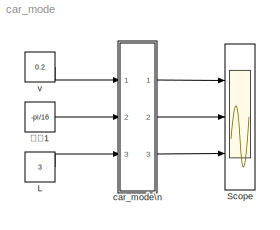
MODEL car_mode
KIND model
BLOCK [Constant]  L
  SID = 26
  Value = 3
BLOCK [Constant]  ¦Ä1
  SID = 33
  Value = -pi/16
BLOCK [Scope] Scope
  Floating = off
  NumInputPorts = 3
  Ports = [3]
  SID = 17
  ScopeSpecificationString = Simulink.scopes.TimeScopeBlockCfg('CurrentConfiguration', extmgr.ConfigurationSet(extmgr.Configuration('Core','General UI',true),extmgr.Configuration('Core','Source UI',true),extmgr.Configuration('Sources','WiredSimulink',true,'DataLoggingVariableName','x','DataLogging',true),extmgr.Configuration('Visuals','Time Domain',true,'SerializedDisplays',{struct('MinYLimReal','-3.76639','MaxYLimReal','33.8...<+2714ch>
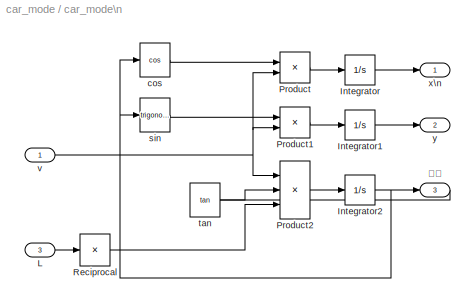
BLOCK [SubSystem] car_mode\n
  Ports = [3, 3]
  RequestExecContextInheritance = off
  SID = 18
BLOCK [Integrator] car_mode\n/Integrator
  Ports = [1, 1]
  SID = 1
BLOCK [Integrator] car_mode\n/Integrator1
  Ports = [1, 1]
  SID = 10
BLOCK [Integrator] car_mode\n/Integrator2
  InitialCondition = pi/2
  Ports = [1, 1]
  SID = 15
BLOCK [Inport] car_mode\n/L
  IconDisplay = Port number
  Port = 3
  SID = 24
BLOCK [Product] car_mode\n/Product
  InputSameDT = off
  OutDataTypeStr = Inherit: Inherit via internal rule
  Ports = [2, 1]
  RndMeth = Floor
  SID = 3
  SaturateOnIntegerOverflow = off
BLOCK [Product] car_mode\n/Product1
  InputSameDT = off
  OutDataTypeStr = Inherit: Inherit via internal rule
  Ports = [2, 1]
  RndMeth = Floor
  SID = 9
  SaturateOnIntegerOverflow = off
BLOCK [Product] car_mode\n/Product2
  InputSameDT = off
  Inputs = 3
  OutDataTypeStr = Inherit: Inherit via internal rule
  Ports = [3, 1]
  RndMeth = Floor
  SID = 13
  SaturateOnIntegerOverflow = off
BLOCK [Product] car_mode\n/Reciprocal
  InputSameDT = off
  Inputs = /
  OutDataTypeStr = Inherit: Inherit via internal rule
  Ports = [1, 1]
  RndMeth = Floor
  SID = 25
  SaturateOnIntegerOverflow = off
BLOCK [Trigonometry] car_mode\n/cos
  Operator = cos
  Ports = [1, 1]
  SID = 5
BLOCK [Trigonometry] car_mode\n/sin
  Ports = [1, 1]
  SID = 8
BLOCK [Trigonometry] car_mode\n/tan
  Operator = tan
  Ports = [1, 1]
  SID = 11
BLOCK [Inport] car_mode\n/v
  IconDisplay = Port number
  SID = 19
BLOCK [Outport] car_mode\n/x\n
  IconDisplay = Port number
  SID = 21
BLOCK [Outport] car_mode\n/y
  IconDisplay = Port number
  Port = 2
  SID = 22
BLOCK [Inport] car_mode\n/¦Ä
  IconDisplay = Port number
  Port = 2
  SID = 20
BLOCK [Outport] car_mode\n/¦Õ
  IconDisplay = Port number
  Port = 3
  SID = 23
BLOCK [Constant] v
  SID = 2
  Value = 0.2
LINE  L:1 -> car_mode\n:3
LINE  ¦Ä1:1 -> car_mode\n:2
LINE car_mode\n/Integrator1:1 -> car_mode\n/y:1
NET car_mode\n/Integrator2:1 -> car_mode\n/cos:1, car_mode\n/sin:1, car_mode\n/¦Õ:1
LINE car_mode\n/Integrator:1 -> car_mode\n/x\n:1
LINE car_mode\n/L:1 -> car_mode\n/Reciprocal:1
LINE car_mode\n/Product1:1 -> car_mode\n/Integrator1:1
LINE car_mode\n/Product2:1 -> car_mode\n/Integrator2:1
LINE car_mode\n/Product:1 -> car_mode\n/Integrator:1
LINE car_mode\n/Reciprocal:1 -> car_mode\n/Product2:3
LINE car_mode\n/cos:1 -> car_mode\n/Product:1
LINE car_mode\n/sin:1 -> car_mode\n/Product1:1
LINE car_mode\n/tan:1 -> car_mode\n/Product2:2
NET car_mode\n/v:1 -> car_mode\n/Product1:2, car_mode\n/Product2:1, car_mode\n/Product:2
LINE car_mode\n/¦Ä:1 -> car_mode\n/tan:1
LINE car_mode\n:1 -> Scope:1
LINE car_mode\n:2 -> Scope:2
LINE car_mode\n:3 -> Scope:3
LINE v:1 -> car_mode\n:1
note: NET lines group one-source signal fan-out (src -> all destinations, sorted); 1:1 wires keep LINE
